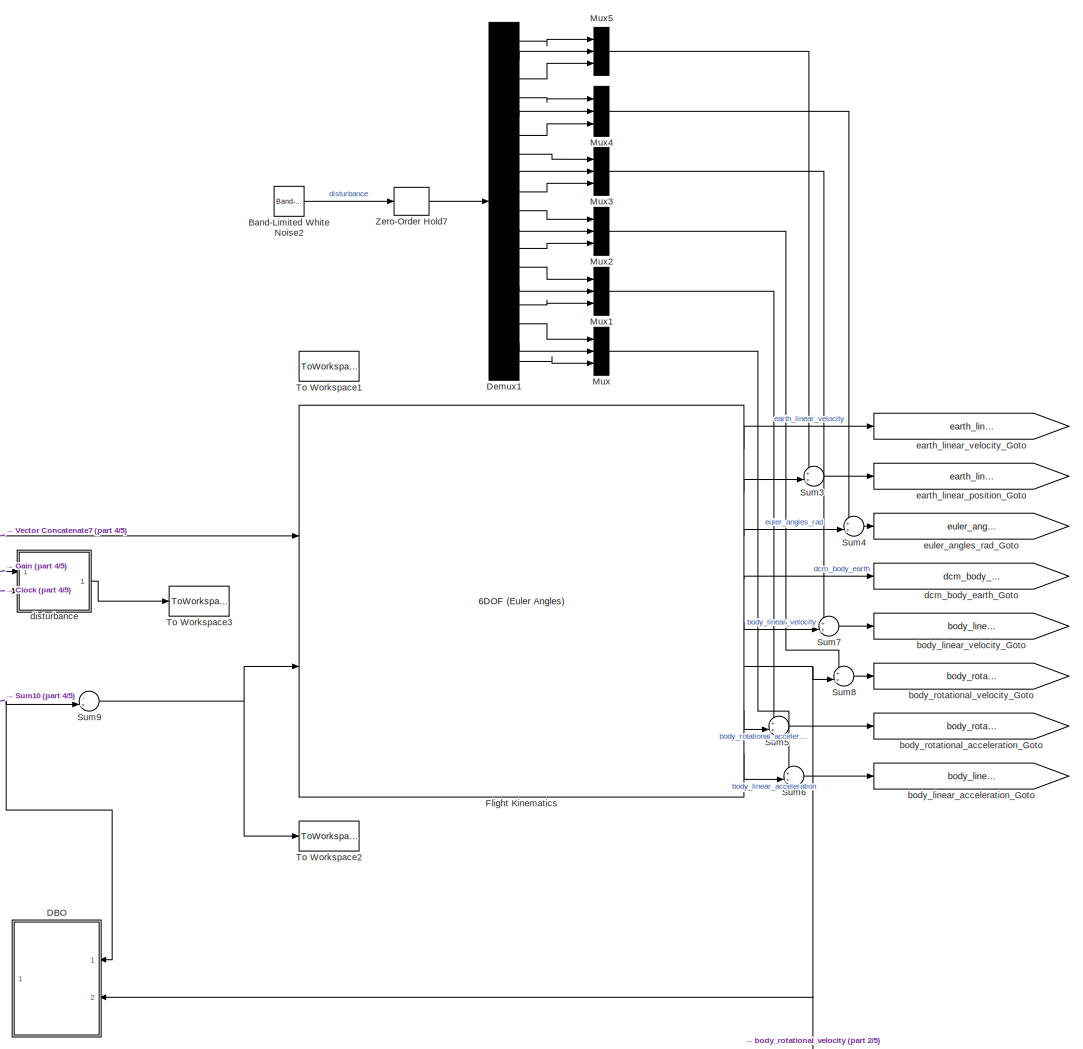
[diagram: root canvas - part 1/5, right side, full height]
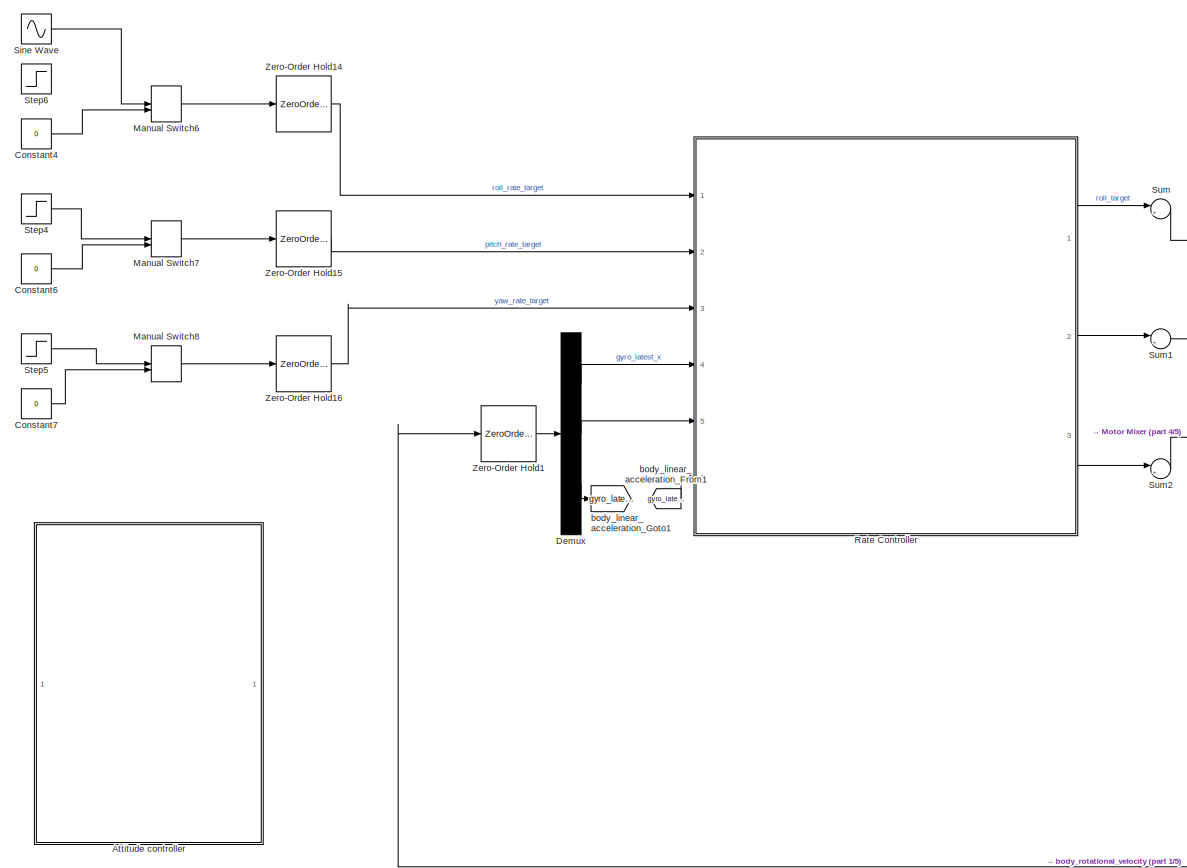
[diagram: root canvas - part 2/5, left side, full height]
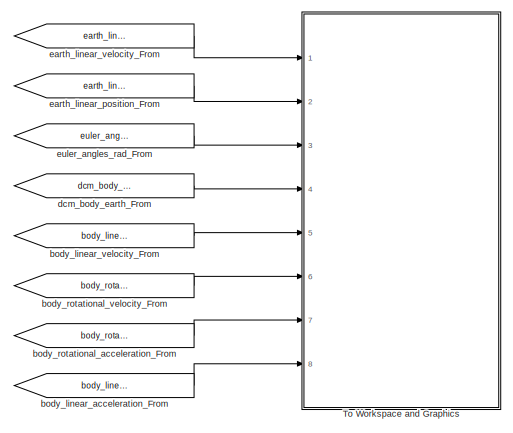
[diagram: root canvas - part 3/5, middle right region]
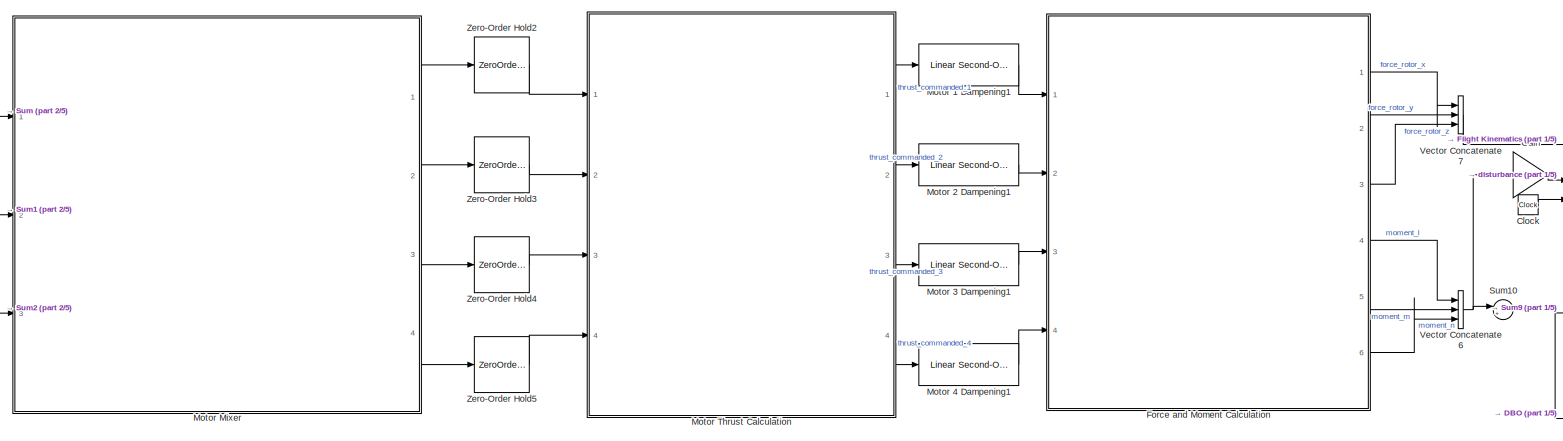
[diagram: root canvas - part 4/5, central region]
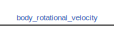
[diagram: root canvas - part 5/5, bottom center region]
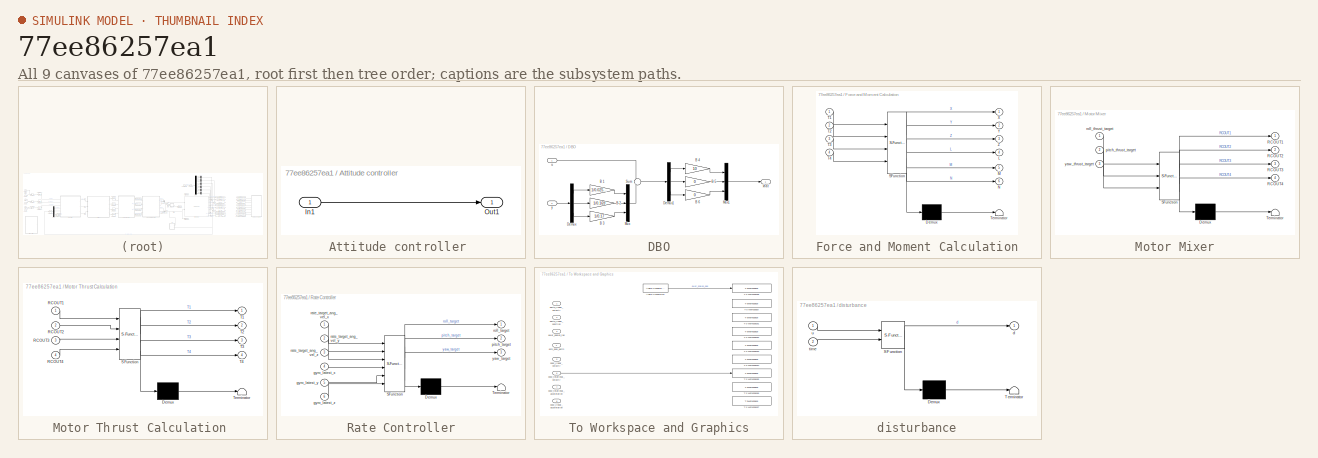
[diagram: thumbnail index - all 9 canvases of the model, root first then tree order]
MODEL slx_77ee86257ea1
KIND model
CONFIG AbsTol = auto
CONFIG FixedStep = Ts
CONFIG MaxStep = auto
CONFIG MinStep = auto
CONFIG RelTol = 1e-3
CONFIG SampleTimeConstraint = Unconstrained
CONFIG Solver = VariableStepAuto
CONFIG SolverMode = Auto
CONFIG SolverName = VariableStepAuto
CONFIG StartTime = 0.0
CONFIG StopTime = 10
WORKSPACE source: MAT-file member
WORKSPACE MCOS: class17 (value not decoded)
BLOCK [SubSystem] Attitude controller 
  Ports = [1, 1]
  RequestExecContextInheritance = off
  Variant = off
BLOCK [Inport] Attitude controller /In1
  IconDisplay = Port number
BLOCK [Outport] Attitude controller /Out1
  IconDisplay = Port number
BLOCK [Reference] Band-Limited White Noise2  REF=simulink/Sources/Band-Limited
White Noise
  Ports = [0, 1]
  SourceBlock = simulink/Sources/Band-Limited\nWhite Noise
  SourceType = Band-Limited White Noise.
BLOCK [Clock] Clock
BLOCK [Constant] Constant4
  SampleTime = Ts
  Value = 0
BLOCK [Constant] Constant6
  SampleTime = Ts
  Value = 0
BLOCK [Constant] Constant7
  SampleTime = Ts
  Value = 0
BLOCK [SubSystem] DBO
  Ports = [2, 1]
  RequestExecContextInheritance = off
  Variant = off
BLOCK [Gain] DBO/B 1
  Gain = 1/0.02508
  OutDataTypeStr = Inherit: Inherit via internal rule
  ParamDataTypeStr = Inherit: Inherit via internal rule
  SaturateOnIntegerOverflow = off
BLOCK [Gain] DBO/B 2
  Gain = 1/0.169
  OutDataTypeStr = Inherit: Inherit via internal rule
  ParamDataTypeStr = Inherit: Inherit via internal rule
  SaturateOnIntegerOverflow = off
BLOCK [Gain] DBO/B 3
  Gain = 1/0.17
  OutDataTypeStr = Inherit: Inherit via internal rule
  ParamDataTypeStr = Inherit: Inherit via internal rule
  SaturateOnIntegerOverflow = off
BLOCK [Gain] DBO/B 4
  Gain = 10
  OutDataTypeStr = Inherit: Inherit via internal rule
  ParamDataTypeStr = Inherit: Inherit via internal rule
  SaturateOnIntegerOverflow = off
BLOCK [Gain] DBO/B 5
  Gain = 0
  OutDataTypeStr = Inherit: Inherit via internal rule
  ParamDataTypeStr = Inherit: Inherit via internal rule
  SaturateOnIntegerOverflow = off
BLOCK [Gain] DBO/B 6
  Gain = 0
  OutDataTypeStr = Inherit: Inherit via internal rule
  ParamDataTypeStr = Inherit: Inherit via internal rule
  SaturateOnIntegerOverflow = off
BLOCK [Demux] DBO/Demux
  DisplayOption = bar
  Outputs = 3
  Ports = [1, 3]
BLOCK [Demux] DBO/Demux1
  DisplayOption = bar
  Outputs = 3
  Ports = [1, 3]
BLOCK [Mux] DBO/Mux
  DisplayOption = bar
  Inputs = 3
  Ports = [3, 1]
BLOCK [Mux] DBO/Mux1
  DisplayOption = bar
  Inputs = 3
  Ports = [3, 1]
BLOCK [Sum] DBO/Sum
  IconShape = round
  InputSameDT = off
  Inputs = -|+
  OutDataTypeStr = Inherit: Inherit via internal rule
  Ports = [2, 1]
  SaturateOnIntegerOverflow = off
BLOCK [Inport] DBO/u 
  IconDisplay = Port number
BLOCK [Outport] DBO/xhat
  IconDisplay = Port number
BLOCK [Inport] DBO/y
  IconDisplay = Port number
  Port = 2
BLOCK [Demux] Demux
  DisplayOption = bar
  Outputs = 3
  Ports = [1, 3]
BLOCK [Demux] Demux1
  DisplayOption = bar
  Outputs = 18
  Ports = [1, 18]
BLOCK [Reference] Flight Kinematics  REF=aerolib6dof2/6DOF (Euler Angles)
  Ports = [2, 8]
  SourceBlock = aerolib6dof2/6DOF (Euler Angles)
  SourceType = 6DOF EoM (Body Axis)
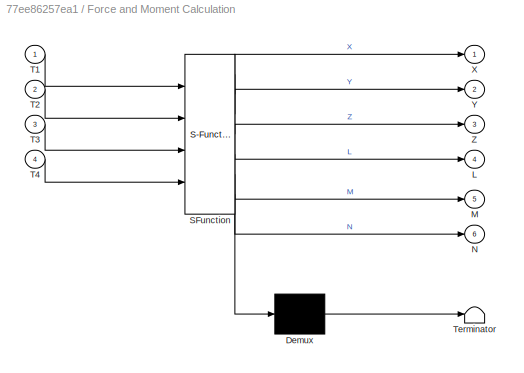
BLOCK [SubSystem] Force and Moment Calculation
  ErrorFcn = Stateflow.Translate.translate
  PermitHierarchicalResolution = ExplicitOnly
  Ports = [4, 6]
  RequestExecContextInheritance = off
  SFBlockType = MATLAB Function
  TreatAsAtomicUnit = on
  Variant = off
BLOCK [Demux] Force and Moment Calculation/ Demux 
  Outputs = 1
  Ports = [1, 1]
BLOCK [S-Function] Force and Moment Calculation/ SFunction 
  EnableBusSupport = on
  FunctionName = sf_sfun
  PortCounts = [4 7]
  Ports = [4, 7]
  SFunctionDeploymentMode = off
  Tag = Stateflow S-Function Plantvalidationobserver 6
BLOCK [Terminator] Force and Moment Calculation/ Terminator 
BLOCK [Outport] Force and Moment Calculation/L
  IconDisplay = Port number
  Port = 4
BLOCK [Outport] Force and Moment Calculation/M
  IconDisplay = Port number
  Port = 5
BLOCK [Outport] Force and Moment Calculation/N
  IconDisplay = Port number
  Port = 6
BLOCK [Inport] Force and Moment Calculation/T1
  IconDisplay = Port number
BLOCK [Inport] Force and Moment Calculation/T2
  IconDisplay = Port number
  Port = 2
BLOCK [Inport] Force and Moment Calculation/T3
  IconDisplay = Port number
  Port = 3
BLOCK [Inport] Force and Moment Calculation/T4
  IconDisplay = Port number
  Port = 4
BLOCK [Outport] Force and Moment Calculation/X
  IconDisplay = Port number
BLOCK [Outport] Force and Moment Calculation/Y
  IconDisplay = Port number
  Port = 2
BLOCK [Outport] Force and Moment Calculation/Z
  IconDisplay = Port number
  Port = 3
BLOCK [Gain] Gain
  Gain = 0
  OutDataTypeStr = Inherit: Inherit via internal rule
  ParamDataTypeStr = Inherit: Inherit via internal rule
  SaturateOnIntegerOverflow = off
BLOCK [ManualSwitch] Manual Switch6
BLOCK [ManualSwitch] Manual Switch7
  CurrentSetting = 0
BLOCK [ManualSwitch] Manual Switch8
  CurrentSetting = 0
BLOCK [Reference] Motor 1 Dampening1  REF=aerolibactuator/Linear Second-Order Actuator
  Ports = [1, 1]
  SourceBlock = aerolibactuator/Linear Second-Order Actuator
  SourceType = LinearSecondOrderActuator
BLOCK [Reference] Motor 2 Dampening1  REF=aerolibactuator/Linear Second-Order Actuator
  Ports = [1, 1]
  SourceBlock = aerolibactuator/Linear Second-Order Actuator
  SourceType = LinearSecondOrderActuator
BLOCK [Reference] Motor 3 Dampening1  REF=aerolibactuator/Linear Second-Order Actuator
  Ports = [1, 1]
  SourceBlock = aerolibactuator/Linear Second-Order Actuator
  SourceType = LinearSecondOrderActuator
BLOCK [Reference] Motor 4 Dampening1  REF=aerolibactuator/Linear Second-Order Actuator
  Ports = [1, 1]
  SourceBlock = aerolibactuator/Linear Second-Order Actuator
  SourceType = LinearSecondOrderActuator
BLOCK [SubSystem] Motor Mixer
  ErrorFcn = Stateflow.Translate.translate
  PermitHierarchicalResolution = ExplicitOnly
  Ports = [3, 4]
  RequestExecContextInheritance = off
  SFBlockType = MATLAB Function
  TreatAsAtomicUnit = on
  Variant = off
BLOCK [Demux] Motor Mixer/ Demux 
  Outputs = 1
  Ports = [1, 1]
BLOCK [S-Function] Motor Mixer/ SFunction 
  EnableBusSupport = on
  FunctionName = sf_sfun
  PortCounts = [3 5]
  Ports = [3, 5]
  SFunctionDeploymentMode = off
  Tag = Stateflow S-Function Plantvalidationobserver 5
BLOCK [Terminator] Motor Mixer/ Terminator 
BLOCK [Outport] Motor Mixer/RCOUT1
  IconDisplay = Port number
BLOCK [Outport] Motor Mixer/RCOUT2
  IconDisplay = Port number
  Port = 2
BLOCK [Outport] Motor Mixer/RCOUT3
  IconDisplay = Port number
  Port = 3
BLOCK [Outport] Motor Mixer/RCOUT4
  IconDisplay = Port number
  Port = 4
BLOCK [Inport] Motor Mixer/pitch_thrust_target
  IconDisplay = Port number
  Port = 2
BLOCK [Inport] Motor Mixer/roll_thrust_target
  IconDisplay = Port number
BLOCK [Inport] Motor Mixer/yaw_thrust_target
  IconDisplay = Port number
  Port = 3
BLOCK [SubSystem] Motor Thrust Calculation 
  ErrorFcn = Stateflow.Translate.translate
  PermitHierarchicalResolution = ExplicitOnly
  Ports = [4, 4]
  RequestExecContextInheritance = off
  SFBlockType = MATLAB Function
  TreatAsAtomicUnit = on
  Variant = off
BLOCK [Demux] Motor Thrust Calculation / Demux 
  Outputs = 1
  Ports = [1, 1]
BLOCK [S-Function] Motor Thrust Calculation / SFunction 
  EnableBusSupport = on
  FunctionName = sf_sfun
  PortCounts = [4 5]
  Ports = [4, 5]
  SFunctionDeploymentMode = off
  Tag = Stateflow S-Function Plantvalidationobserver 8
BLOCK [Terminator] Motor Thrust Calculation / Terminator 
BLOCK [Inport] Motor Thrust Calculation /RCOUT1
  IconDisplay = Port number
BLOCK [Inport] Motor Thrust Calculation /RCOUT2
  IconDisplay = Port number
  Port = 2
BLOCK [Inport] Motor Thrust Calculation /RCOUT3
  IconDisplay = Port number
  Port = 3
BLOCK [Inport] Motor Thrust Calculation /RCOUT4
  IconDisplay = Port number
  Port = 4
BLOCK [Outport] Motor Thrust Calculation /T1
  IconDisplay = Port number
BLOCK [Outport] Motor Thrust Calculation /T2
  IconDisplay = Port number
  Port = 2
BLOCK [Outport] Motor Thrust Calculation /T3
  IconDisplay = Port number
  Port = 3
BLOCK [Outport] Motor Thrust Calculation /T4
  IconDisplay = Port number
  Port = 4
BLOCK [Mux] Mux
  DisplayOption = bar
  Inputs = 3
  Ports = [3, 1]
BLOCK [Mux] Mux1
  DisplayOption = bar
  Inputs = 3
  Ports = [3, 1]
BLOCK [Mux] Mux2
  DisplayOption = bar
  Inputs = 3
  Ports = [3, 1]
BLOCK [Mux] Mux3
  DisplayOption = bar
  Inputs = 3
  Ports = [3, 1]
BLOCK [Mux] Mux4
  DisplayOption = bar
  Inputs = 3
  Ports = [3, 1]
BLOCK [Mux] Mux5
  DisplayOption = bar
  Inputs = 3
  Ports = [3, 1]
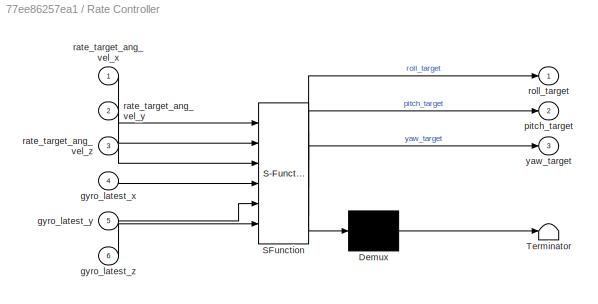
BLOCK [SubSystem] Rate Controller
  ErrorFcn = Stateflow.Translate.translate
  PermitHierarchicalResolution = ExplicitOnly
  Ports = [6, 3]
  RequestExecContextInheritance = off
  SFBlockType = MATLAB Function
  TreatAsAtomicUnit = on
  Variant = off
BLOCK [Demux] Rate Controller/ Demux 
  Outputs = 1
  Ports = [1, 1]
BLOCK [S-Function] Rate Controller/ SFunction 
  EnableBusSupport = on
  FunctionName = sf_sfun
  PortCounts = [6 4]
  Ports = [6, 4]
  SFunctionDeploymentMode = off
  Tag = Stateflow S-Function Plantvalidationobserver 1
BLOCK [Terminator] Rate Controller/ Terminator 
BLOCK [Inport] Rate Controller/gyro_latest_x
  IconDisplay = Port number
  Port = 4
BLOCK [Inport] Rate Controller/gyro_latest_y
  IconDisplay = Port number
  Port = 5
BLOCK [Inport] Rate Controller/gyro_latest_z
  IconDisplay = Port number
  Port = 6
BLOCK [Outport] Rate Controller/pitch_target
  IconDisplay = Port number
  Port = 2
BLOCK [Inport] Rate Controller/rate_target_ang_vel_x
  IconDisplay = Port number
BLOCK [Inport] Rate Controller/rate_target_ang_vel_y
  IconDisplay = Port number
  Port = 2
BLOCK [Inport] Rate Controller/rate_target_ang_vel_z
  IconDisplay = Port number
  Port = 3
BLOCK [Outport] Rate Controller/roll_target
  IconDisplay = Port number
BLOCK [Outport] Rate Controller/yaw_target
  IconDisplay = Port number
  Port = 3
BLOCK [Sin] Sine Wave
  Amplitude = 1000
  Ports = [0, 1]
  SampleTime = 0
BLOCK [Step] Step4
  After = 800
  SampleTime = Ts
  Time = 0.1
BLOCK [Step] Step5
  After = 8
  SampleTime = Ts
  Time = 0.1
BLOCK [Step] Step6
  After = 1000
  SampleTime = Ts
  Time = 2
BLOCK [Sum] Sum
  IconShape = round
  InputSameDT = off
  Inputs = |++
  OutDataTypeStr = Inherit: Inherit via internal rule
  Ports = [2, 1]
  SaturateOnIntegerOverflow = off
BLOCK [Sum] Sum1
  IconShape = round
  InputSameDT = off
  Inputs = |++
  OutDataTypeStr = Inherit: Inherit via internal rule
  Ports = [2, 1]
  SaturateOnIntegerOverflow = off
BLOCK [Sum] Sum10
  IconShape = round
  InputSameDT = off
  Inputs = |+-
  OutDataTypeStr = Inherit: Inherit via internal rule
  Ports = [2, 1]
  SaturateOnIntegerOverflow = off
BLOCK [Sum] Sum2
  IconShape = round
  InputSameDT = off
  Inputs = |++
  OutDataTypeStr = Inherit: Inherit via internal rule
  Ports = [2, 1]
  SaturateOnIntegerOverflow = off
BLOCK [Sum] Sum3
  IconShape = round
  InputSameDT = off
  Inputs = ++|
  OutDataTypeStr = Inherit: Inherit via internal rule
  Ports = [2, 1]
  SaturateOnIntegerOverflow = off
BLOCK [Sum] Sum4
  IconShape = round
  InputSameDT = off
  Inputs = ++|
  OutDataTypeStr = Inherit: Inherit via internal rule
  Ports = [2, 1]
  SaturateOnIntegerOverflow = off
BLOCK [Sum] Sum5
  IconShape = round
  InputSameDT = off
  Inputs = ++|
  OutDataTypeStr = Inherit: Inherit via internal rule
  Ports = [2, 1]
  SaturateOnIntegerOverflow = off
BLOCK [Sum] Sum6
  IconShape = round
  InputSameDT = off
  Inputs = ++|
  OutDataTypeStr = Inherit: Inherit via internal rule
  Ports = [2, 1]
  SaturateOnIntegerOverflow = off
BLOCK [Sum] Sum7
  IconShape = round
  InputSameDT = off
  Inputs = ++|
  OutDataTypeStr = Inherit: Inherit via internal rule
  Ports = [2, 1]
  SaturateOnIntegerOverflow = off
BLOCK [Sum] Sum8
  IconShape = round
  InputSameDT = off
  Inputs = ++|
  OutDataTypeStr = Inherit: Inherit via internal rule
  Ports = [2, 1]
  SaturateOnIntegerOverflow = off
BLOCK [Sum] Sum9
  IconShape = round
  InputSameDT = off
  Inputs = -+|
  OutDataTypeStr = Inherit: Inherit via internal rule
  Ports = [2, 1]
  SaturateOnIntegerOverflow = off
BLOCK [SubSystem] To Workspace and Graphics
  Ports = [8]
  RequestExecContextInheritance = off
  Variant = off
BLOCK [Reference] To Workspace and Graphics/Angle Conversion  REF=aerolibconvert2/Angle Conversion
  Ports = [1, 1]
  SourceBlock = aerolibconvert2/Angle Conversion
  SourceType = Angle Conversion
BLOCK [ToWorkspace] To Workspace and Graphics/To Workspace
  FixptAsFi = on
  MaxDataPoints = inf
  Ports = [1]
  SampleTime = -1
  Save2DSignal = 3-D array (concatenate along third dimension)
  VariableName = earth_linear_velocity
BLOCK [ToWorkspace] To Workspace and Graphics/To Workspace1
  FixptAsFi = on
  MaxDataPoints = inf
  Ports = [1]
  SampleTime = -1
  Save2DSignal = 3-D array (concatenate along third dimension)
  VariableName = earth_linear_position
BLOCK [ToWorkspace] To Workspace and Graphics/To Workspace2
  FixptAsFi = on
  MaxDataPoints = inf
  Ports = [1]
  SampleTime = -1
  Save2DSignal = 3-D array (concatenate along third dimension)
  VariableName = euler_angles_rad
BLOCK [ToWorkspace] To Workspace and Graphics/To Workspace3
  FixptAsFi = on
  MaxDataPoints = inf
  Ports = [1]
  SampleTime = -1
  Save2DSignal = 3-D array (concatenate along third dimension)
  VariableName = dcm_body_earth
BLOCK [ToWorkspace] To Workspace and Graphics/To Workspace4
  FixptAsFi = on
  MaxDataPoints = inf
  Ports = [1]
  SampleTime = -1
  Save2DSignal = 3-D array (concatenate along third dimension)
  VariableName = body_linear_velocity
BLOCK [ToWorkspace] To Workspace and Graphics/To Workspace5
  FixptAsFi = on
  MaxDataPoints = inf
  Ports = [1]
  SampleTime = -1
  Save2DSignal = 3-D array (concatenate along third dimension)
  VariableName = body_rotational_velocity
BLOCK [ToWorkspace] To Workspace and Graphics/To Workspace6
  FixptAsFi = on
  MaxDataPoints = inf
  Ports = [1]
  SampleTime = -1
  Save2DSignal = 3-D array (concatenate along third dimension)
  VariableName = body_rotational_acceleration
BLOCK [ToWorkspace] To Workspace and Graphics/To Workspace7
  FixptAsFi = on
  MaxDataPoints = inf
  Ports = [1]
  SampleTime = -1
  Save2DSignal = 3-D array (concatenate along third dimension)
  VariableName = body_linear_acceleration
BLOCK [ToWorkspace] To Workspace and Graphics/To Workspace8
  FixptAsFi = on
  MaxDataPoints = inf
  Ports = [1]
  SampleTime = -1
  Save2DSignal = 3-D array (concatenate along third dimension)
  VariableName = euler_angles_deg
BLOCK [Inport] To Workspace and Graphics/body_linear_acceleration
  IconDisplay = Port number
  Port = 8
BLOCK [Inport] To Workspace and Graphics/body_linear_velocity
  IconDisplay = Port number
  Port = 5
BLOCK [Inport] To Workspace and Graphics/body_rotational_acceleration
  IconDisplay = Port number
  Port = 7
BLOCK [Inport] To Workspace and Graphics/body_rotational_velocity
  IconDisplay = Port number
  Port = 6
BLOCK [Inport] To Workspace and Graphics/dcm_body_earth
  IconDisplay = Port number
  Port = 4
BLOCK [Inport] To Workspace and Graphics/earth_linear_position
  IconDisplay = Port number
  Port = 2
BLOCK [Inport] To Workspace and Graphics/earth_linear_velocity
  IconDisplay = Port number
BLOCK [Inport] To Workspace and Graphics/euler_angles_rad
  IconDisplay = Port number
  Port = 3
BLOCK [ToWorkspace] To Workspace1
  FixptAsFi = on
  MaxDataPoints = inf
  Ports = [1]
  SampleTime = -1
  Save2DSignal = 3-D array (concatenate along third dimension)
  VariableName = force
BLOCK [ToWorkspace] To Workspace2
  FixptAsFi = on
  MaxDataPoints = inf
  Ports = [1]
  SampleTime = -1
  Save2DSignal = 3-D array (concatenate along third dimension)
  VariableName = moment
BLOCK [ToWorkspace] To Workspace3
  FixptAsFi = on
  MaxDataPoints = inf
  Ports = [1]
  SampleTime = -1
  Save2DSignal = 3-D array (concatenate along third dimension)
  VariableName = d
BLOCK [Concatenate] Vector Concatenate6
  NumInputs = 3
  Ports = [3, 1]
BLOCK [Concatenate] Vector Concatenate7
  NumInputs = 3
  Ports = [3, 1]
BLOCK [ZeroOrderHold] Zero-Order Hold1
  SampleTime = dtzoh
BLOCK [ZeroOrderHold] Zero-Order Hold14
  SampleTime = dtzoh
BLOCK [ZeroOrderHold] Zero-Order Hold15
  SampleTime = dtzoh
BLOCK [ZeroOrderHold] Zero-Order Hold16
  SampleTime = dtzoh
BLOCK [ZeroOrderHold] Zero-Order Hold2
  SampleTime = dtzoh
BLOCK [ZeroOrderHold] Zero-Order Hold3
  SampleTime = dtzoh
BLOCK [ZeroOrderHold] Zero-Order Hold4
  SampleTime = dtzoh
BLOCK [ZeroOrderHold] Zero-Order Hold5
  SampleTime = dtzoh
BLOCK [ZeroOrderHold] Zero-Order Hold7
  SampleTime = dtzoh
BLOCK [From] body_linear_acceleration_From
  GotoTag = body_linear_acceleration
  TagVisibility = global
BLOCK [From] body_linear_acceleration_From1
  GotoTag = gyro_latest_z
  TagVisibility = global
BLOCK [Goto] body_linear_acceleration_Goto
  GotoTag = body_linear_acceleration
  TagVisibility = global
BLOCK [Goto] body_linear_acceleration_Goto1
  GotoTag = gyro_latest_z
  TagVisibility = global
BLOCK [From] body_linear_velocity_From
  GotoTag = body_linear_velocity
  TagVisibility = global
BLOCK [Goto] body_linear_velocity_Goto
  GotoTag = body_linear_velocity
  TagVisibility = global
BLOCK [From] body_rotational_acceleration_From
  GotoTag = body_rotational_acceleration
  TagVisibility = global
BLOCK [Goto] body_rotational_acceleration_Goto
  GotoTag = body_rotational_acceleration
  TagVisibility = global
BLOCK [From] body_rotational_velocity_From
  GotoTag = body_rotational_velocity
  TagVisibility = global
BLOCK [Goto] body_rotational_velocity_Goto
  GotoTag = body_rotational_velocity
  TagVisibility = global
BLOCK [From] dcm_body_earth_From
  GotoTag = dcm_body_earth
  TagVisibility = global
BLOCK [Goto] dcm_body_earth_Goto
  GotoTag = dcm_body_earth
  TagVisibility = global
BLOCK [SubSystem] disturbance
  ErrorFcn = Stateflow.Translate.translate
  PermitHierarchicalResolution = ExplicitOnly
  Ports = [2, 1]
  RequestExecContextInheritance = off
  SFBlockType = MATLAB Function
  TreatAsAtomicUnit = on
  Variant = off
BLOCK [Demux] disturbance/ Demux 
  Outputs = 1
  Ports = [1, 1]
BLOCK [S-Function] disturbance/ SFunction 
  EnableBusSupport = on
  FunctionName = sf_sfun
  PortCounts = [2 2]
  Ports = [2, 2]
  SFunctionDeploymentMode = off
  Tag = Stateflow S-Function Plantvalidationobserver 3
BLOCK [Terminator] disturbance/ Terminator 
BLOCK [Outport] disturbance/d
  IconDisplay = Port number
BLOCK [Inport] disturbance/time
  IconDisplay = Port number
  Port = 2
BLOCK [Inport] disturbance/u
  IconDisplay = Port number
BLOCK [From] earth_linear_position_From
  GotoTag = earth_linear_position
  TagVisibility = global
BLOCK [Goto] earth_linear_position_Goto
  GotoTag = earth_linear_position
  TagVisibility = global
BLOCK [From] earth_linear_velocity_From
  GotoTag = earth_linear_velocity
  TagVisibility = global
BLOCK [Goto] earth_linear_velocity_Goto
  GotoTag = earth_linear_velocity
  TagVisibility = global
BLOCK [From] euler_angles_rad_From
  GotoTag = euler_angles_rad
  TagVisibility = global
BLOCK [Goto] euler_angles_rad_Goto
  GotoTag = euler_angles_rad
  TagVisibility = global
LINE Attitude controller /In1:1 -> Attitude controller /Out1:1
LINE Band-Limited White Noise2:1 -> Zero-Order Hold7:1
LINE Clock:1 -> disturbance:2
LINE Constant4:1 -> Manual Switch6:2
LINE Constant6:1 -> Manual Switch7:2
LINE Constant7:1 -> Manual Switch8:2
LINE DBO/B 1:1 -> DBO/Mux:1
LINE DBO/B 2:1 -> DBO/Mux:2
LINE DBO/B 3:1 -> DBO/Mux:3
LINE DBO/B 4:1 -> DBO/Mux1:1
LINE DBO/B 5:1 -> DBO/Mux1:2
LINE DBO/B 6:1 -> DBO/Mux1:3
LINE DBO/Demux1:1 -> DBO/B 4:1
LINE DBO/Demux1:2 -> DBO/B 5:1
LINE DBO/Demux1:3 -> DBO/B 6:1
LINE DBO/Demux:1 -> DBO/B 1:1
LINE DBO/Demux:2 -> DBO/B 2:1
LINE DBO/Demux:3 -> DBO/B 3:1
LINE DBO/Mux1:1 -> DBO/xhat:1
LINE DBO/Mux:1 -> DBO/Sum:2
LINE DBO/Sum:1 -> DBO/Demux1:1
LINE DBO/u :1 -> DBO/Sum:1
LINE DBO/y:1 -> DBO/Demux:1
LINE Demux1:1 -> Mux5:1
LINE Demux1:10 -> Mux2:1
LINE Demux1:11 -> Mux2:2
LINE Demux1:12 -> Mux2:3
LINE Demux1:13 -> Mux1:1
LINE Demux1:14 -> Mux1:2
LINE Demux1:15 -> Mux1:3
LINE Demux1:16 -> Mux:1
LINE Demux1:17 -> Mux:2
LINE Demux1:18 -> Mux:3
LINE Demux1:2 -> Mux5:2
LINE Demux1:3 -> Mux5:3
LINE Demux1:4 -> Mux4:1
LINE Demux1:5 -> Mux4:2
LINE Demux1:6 -> Mux4:3
LINE Demux1:7 -> Mux3:1
LINE Demux1:8 -> Mux3:2
LINE Demux1:9 -> Mux3:3
LINE Demux:1 -> Rate Controller:4
LINE Demux:2 -> Rate Controller:5
LINE Demux:3 -> body_linear_acceleration_Goto1:1
LINE Flight Kinematics:1 -> earth_linear_velocity_Goto:1
LINE Flight Kinematics:2 -> Sum3:2
LINE Flight Kinematics:3 -> Sum4:2
LINE Flight Kinematics:4 -> dcm_body_earth_Goto:1
LINE Flight Kinematics:5 -> Sum7:2
NET Flight Kinematics:6 -> DBO:2, Sum8:2, Zero-Order Hold1:1
LINE Flight Kinematics:7 -> Sum5:2
LINE Flight Kinematics:8 -> Sum6:2
LINE Force and Moment Calculation:1 -> Vector Concatenate7:1
LINE Force and Moment Calculation:2 -> Vector Concatenate7:2
LINE Force and Moment Calculation:3 -> Vector Concatenate7:3
LINE Force and Moment Calculation:4 -> Vector Concatenate6:1
LINE Force and Moment Calculation:5 -> Vector Concatenate6:2
LINE Force and Moment Calculation:6 -> Vector Concatenate6:3
LINE Gain:1 -> disturbance:1
LINE Manual Switch6:1 -> Zero-Order Hold14:1
LINE Manual Switch7:1 -> Zero-Order Hold15:1
LINE Manual Switch8:1 -> Zero-Order Hold16:1
LINE Motor 1 Dampening1:1 -> Force and Moment Calculation:1
LINE Motor 2 Dampening1:1 -> Force and Moment Calculation:2
LINE Motor 3 Dampening1:1 -> Force and Moment Calculation:3
LINE Motor 4 Dampening1:1 -> Force and Moment Calculation:4
LINE Motor Mixer:1 -> Zero-Order Hold2:1
LINE Motor Mixer:2 -> Zero-Order Hold3:1
LINE Motor Mixer:3 -> Zero-Order Hold4:1
LINE Motor Mixer:4 -> Zero-Order Hold5:1
LINE Motor Thrust Calculation :1 -> Motor 1 Dampening1:1
LINE Motor Thrust Calculation :2 -> Motor 2 Dampening1:1
LINE Motor Thrust Calculation :3 -> Motor 3 Dampening1:1
LINE Motor Thrust Calculation :4 -> Motor 4 Dampening1:1
LINE Mux1:1 -> Sum5:1
LINE Mux2:1 -> Sum8:1
LINE Mux3:1 -> Sum7:1
LINE Mux4:1 -> Sum4:1
LINE Mux5:1 -> Sum3:1
LINE Mux:1 -> Sum6:1
LINE Rate Controller:1 -> Sum:1
LINE Rate Controller:2 -> Sum1:1
LINE Rate Controller:3 -> Sum2:1
LINE Sine Wave:1 -> Manual Switch6:1
LINE Step4:1 -> Manual Switch7:1
LINE Step5:1 -> Manual Switch8:1
NET Sum10:1 -> DBO:1, Sum9:2
LINE Sum1:1 -> Motor Mixer:2
LINE Sum2:1 -> Motor Mixer:3
LINE Sum3:1 -> earth_linear_position_Goto:1
LINE Sum4:1 -> euler_angles_rad_Goto:1
LINE Sum5:1 -> body_rotational_acceleration_Goto:1
LINE Sum6:1 -> body_linear_acceleration_Goto:1
LINE Sum7:1 -> body_linear_velocity_Goto:1
LINE Sum8:1 -> body_rotational_velocity_Goto:1
NET Sum9:1 -> Flight Kinematics:2, To Workspace2:1
LINE Sum:1 -> Motor Mixer:1
LINE To Workspace and Graphics/Angle Conversion:1 -> To Workspace and Graphics/To Workspace8:1
LINE To Workspace and Graphics/body_rotational_velocity:1 -> To Workspace and Graphics/To Workspace5:1
NET Vector Concatenate6:1 -> Gain:1, Sum10:1
LINE Vector Concatenate7:1 -> Flight Kinematics:1
LINE Zero-Order Hold14:1 -> Rate Controller:1
LINE Zero-Order Hold15:1 -> Rate Controller:2
LINE Zero-Order Hold16:1 -> Rate Controller:3
LINE Zero-Order Hold1:1 -> Demux:1
LINE Zero-Order Hold2:1 -> Motor Thrust Calculation :1
LINE Zero-Order Hold3:1 -> Motor Thrust Calculation :2
LINE Zero-Order Hold4:1 -> Motor Thrust Calculation :3
LINE Zero-Order Hold5:1 -> Motor Thrust Calculation :4
LINE Zero-Order Hold7:1 -> Demux1:1
LINE body_linear_acceleration_From1:1 -> Rate Controller:6
LINE body_linear_acceleration_From:1 -> To Workspace and Graphics:8
LINE body_linear_velocity_From:1 -> To Workspace and Graphics:5
LINE body_rotational_acceleration_From:1 -> To Workspace and Graphics:7
LINE body_rotational_velocity_From:1 -> To Workspace and Graphics:6
LINE dcm_body_earth_From:1 -> To Workspace and Graphics:4
LINE disturbance:1 -> To Workspace3:1
LINE earth_linear_position_From:1 -> To Workspace and Graphics:2
LINE earth_linear_velocity_From:1 -> To Workspace and Graphics:1
LINE euler_angles_rad_From:1 -> To Workspace and Graphics:3
note: NET lines group one-source signal fan-out (src -> all destinations, sorted); 1:1 wires keep LINE
CHART Rate Controller states=1 transitions=1
  STATE_LABEL 'eML_blk_kernel()'
  STATE_LABEL 'SCRIPT:\nfunction [roll_target, pitch_target, yaw_target]  = rate_controller_run( rate_target_ang_vel_x, rate_target_ang_vel_y, rate_target_ang_vel_z , gyro_latest_x, gyro_latest_y, gyro_latest_z)\n%RATE_CONTROLLER_RUN Summary of this function goes here\n%   Detailed explanation goes here\n\nupdate_throttle_rpy_mix();\n\nroll_target = rate_target_to_motor_roll(gyro_latest_x, rate_target_ang_vel_x);\n% rol...<+215ch>'
CHART disturbance states=1 transitions=1
  STATE_LABEL 'eML_blk_kernel()'
  STATE_LABEL 'SCRIPT:\nfunction d  = disturbance(u,time)\n%#codegen\n\nd = [0;\n     0;\n     0];\n\nif time >= 2\n    d = u;\nend\n\n'
CHART Motor Mixer states=1 transitions=1
  STATE_LABEL 'eML_blk_kernel()'
  STATE_LABEL 'SCRIPT:\nfunction [RCOUT1, RCOUT2, RCOUT3, RCOUT4 ]  = motor_mixer( roll_thrust_target, pitch_thrust_target, yaw_thrust_target)\n%% Motor Mixer\n\n%\n%   Matlab Implementation of the ArduPilot Motor Mixer\n%   Outputs Motor Commands based on required rate targets\n%\n    global pwm_min pwm_max spin_min spin_max\n\n    % Update throttle filter\n    update_throttle_filter();\n\n    % Update battery resistance\n  ...<+1447ch>'
CHART Force and Moment Calculation states=1 transitions=1
  STATE_LABEL 'eML_blk_kernel()'
  STATE_LABEL 'SCRIPT:\nfunction [X, Y, Z, L, M, N] = forceMomentCalc(T1, T2, T3, T4)\n%T1 = Motor 1 Thrust                (N)\n%T2 = Motor 2 Thrust                (N)\n%T3 = Motor 3 Thrust                (N)\n%T4 = Motor 4 Thrust                (N)\n%X = Force in x axis                (N)\n%Y = Force in y axis                (N)                \n%Z = Force in z axis                (N)\n%L = Rolling moment around x axis ...<+692ch>'
CHART Motor Thrust Calculation
 states=1 transitions=1
  STATE_LABEL 'eML_blk_kernel()'
  STATE_LABEL 'SCRIPT:\nfunction [T1, T2, T3, T4] = motorOutputs(RCOUT1, RCOUT2, RCOUT3, RCOUT4)\n%   RCOUTx = PWM Value out of the Autopilot                (1000us-2000us)\n%   Tx = Thrust value produced by the motor/rotor pair     (N)\n%\n%   1.Calculate Tmax by adding overhead onto hover throttle\n%   2.Map RCOUT values between 0 and 1\n%   3.Multiply unity RCOUT value by Tmax\n\n% Tmax = 2*(2.2*9.8);                 ...<+2212ch>'
